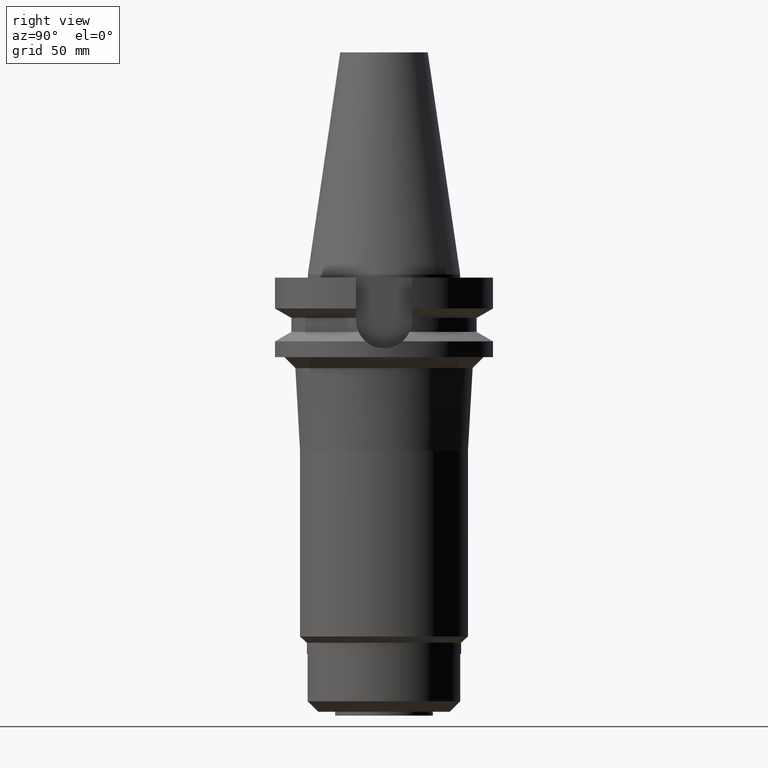
[diagram: clean part render]
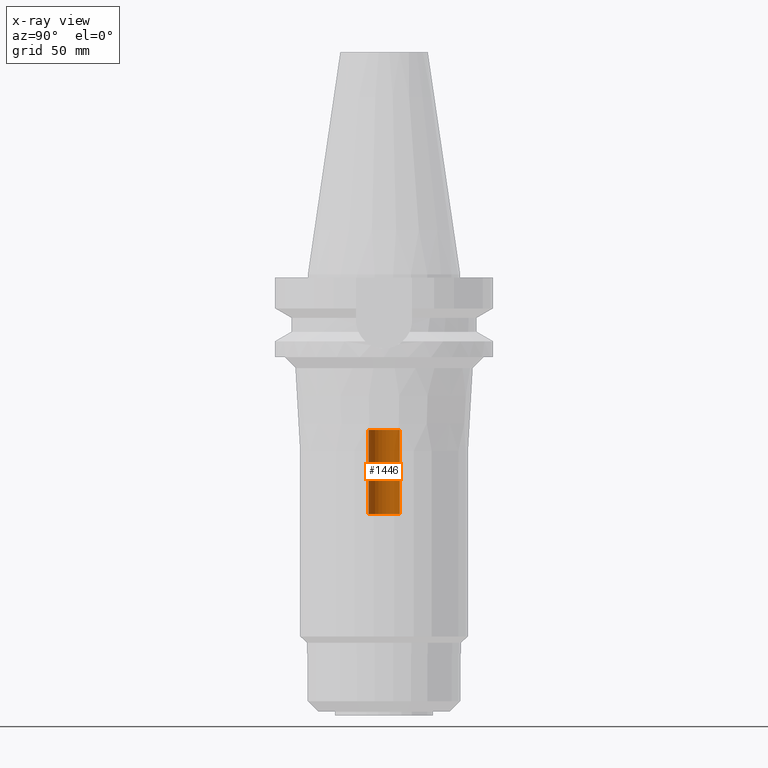
[diagram: x-ray — body ghosted, one internal face saturated and labeled with its STEP entity id]
A machine part, right view, then the same camera in x-ray: the body is ghosted and one INTERNAL B-rep face — a face not visible from any outside direction — is saturated and labeled: STEP entity #1446.
In plain terms, the highlighted cylindrical surface (edge-blend (fillet) strip) has radius 7.25 mm, axis along (0, 0, -1).
Its self-contained STEP definition (entity closure, byte-faithful):
#132=CARTESIAN_POINT('',(0.E0,2.657606018830E-14,-7.14E1));
#133=DIRECTION('',(0.E0,0.E0,1.E0));
#134=DIRECTION('',(0.E0,1.E0,0.E0));
#135=AXIS2_PLACEMENT_3D('',#132,#133,#134);
#140=DIRECTION('',(0.E0,0.E0,1.E0));
#141=VECTOR('',#140,3.86E1);
#142=CARTESIAN_POINT('',(0.E0,7.25E0,-1.1E2));
#143=LINE('',#142,#141);
#147=DIRECTION('',(0.E0,0.E0,1.E0));
#148=VECTOR('',#147,3.86E1);
#149=CARTESIAN_POINT('',(0.E0,-7.25E0,-1.1E2));
#150=LINE('',#149,#148);
#170=CARTESIAN_POINT('',(0.E0,2.657606018830E-14,-1.1E2));
#171=DIRECTION('',(0.E0,0.E0,-1.E0));
#172=DIRECTION('',(0.E0,-1.E0,0.E0));
#173=AXIS2_PLACEMENT_3D('',#170,#171,#172);
#1148=CARTESIAN_POINT('',(0.E0,-7.25E0,-7.14E1));
#1149=CARTESIAN_POINT('',(0.E0,7.25E0,-7.14E1));
#1150=VERTEX_POINT('',#1148);
#1151=VERTEX_POINT('',#1149);
#1152=CARTESIAN_POINT('',(0.E0,7.25E0,-1.1E2));
#1153=VERTEX_POINT('',#1152);
#1154=CARTESIAN_POINT('',(0.E0,-7.25E0,-1.1E2));
#1155=VERTEX_POINT('',#1154);
#1434=CARTESIAN_POINT('',(0.E0,2.657606018830E-14,1.1701E2));
#1435=DIRECTION('',(0.E0,0.E0,-1.E0));
#1436=DIRECTION('',(0.E0,-1.E0,0.E0));
#1437=AXIS2_PLACEMENT_3D('',#1434,#1435,#1436);
#1438=CYLINDRICAL_SURFACE('',#1437,7.25E0);
#1439=ORIENTED_EDGE('',*,*,#1424,.F.);
#1441=ORIENTED_EDGE('',*,*,#1440,.F.);
#1442=ORIENTED_EDGE('',*,*,#1427,.T.);
#1443=ORIENTED_EDGE('',*,*,#1414,.F.);
#1444=EDGE_LOOP('',(#1439,#1441,#1442,#1443));
#1445=FACE_OUTER_BOUND('',#1444,.F.);
#136=CIRCLE('',#135,7.25E0);
#174=CIRCLE('',#173,7.25E0);
#1414=EDGE_CURVE('',#1151,#1150,#136,.T.);
#1424=EDGE_CURVE('',#1153,#1151,#143,.T.);
#1427=EDGE_CURVE('',#1155,#1150,#150,.T.);
#1440=EDGE_CURVE('',#1155,#1153,#174,.T.);
#1446=ADVANCED_FACE('',(#1445),#1438,.F.);